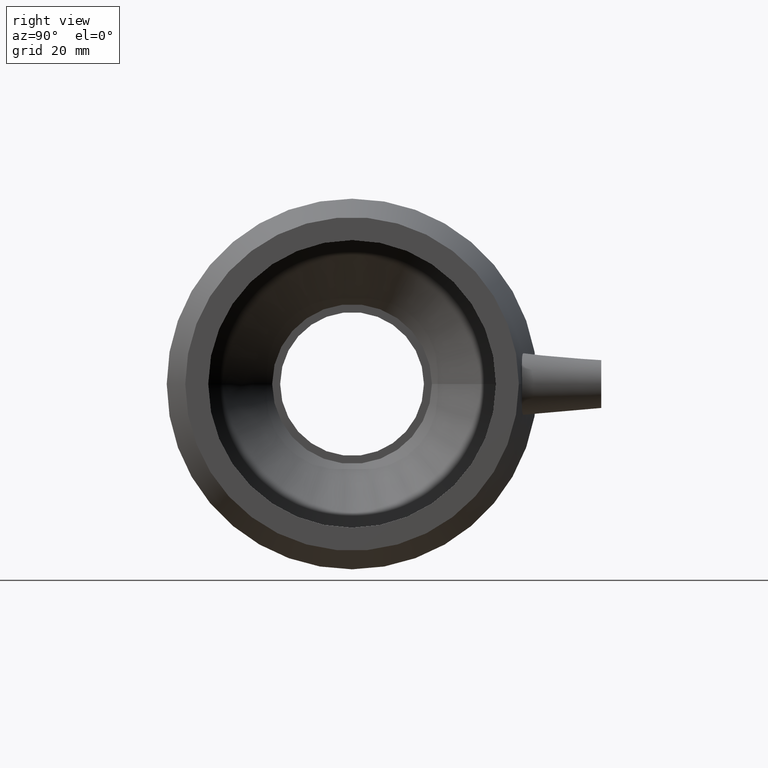
[diagram: clean part render]
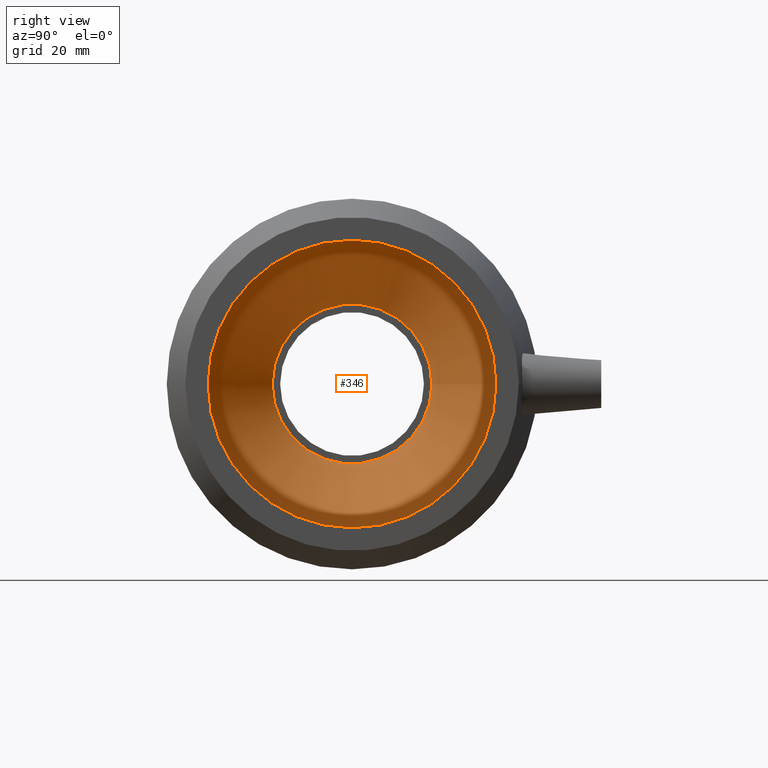
[diagram: same view with one face highlighted and labeled with its STEP entity id]
A machine part, right view. The second image highlights one B-rep face of the part: STEP entity #346.
In plain terms, the highlighted conical surface has half-angle 44.223 deg.
Its self-contained STEP definition (entity closure, byte-faithful):
#22=CONICAL_SURFACE('',#399,35.,44.2229162392636);
#45=FACE_BOUND('',#140,.T.);
#88=FACE_OUTER_BOUND('',#139,.T.);
#139=EDGE_LOOP('',(#292));
#140=EDGE_LOOP('',(#293));
#179=CIRCLE('',#398,45.);
#180=CIRCLE('',#400,25.);
#210=VERTEX_POINT('',#670);
#211=VERTEX_POINT('',#673);
#241=EDGE_CURVE('',#210,#210,#179,.T.);
#242=EDGE_CURVE('',#211,#211,#180,.T.);
#292=ORIENTED_EDGE('',*,*,#242,.F.);
#293=ORIENTED_EDGE('',*,*,#241,.T.);
#346=ADVANCED_FACE('',(#88,#45),#22,.F.);
#398=AXIS2_PLACEMENT_3D('',#671,#500,#501);
#399=AXIS2_PLACEMENT_3D('',#672,#502,#503);
#400=AXIS2_PLACEMENT_3D('',#674,#504,#505);
#500=DIRECTION('center_axis',(1.,1.83697019872103E-16,0.));
#501=DIRECTION('ref_axis',(0.,0.,-1.));
#502=DIRECTION('center_axis',(1.,1.83697019872103E-16,0.));
#503=DIRECTION('ref_axis',(-2.04658941435775E-16,1.,0.));
#504=DIRECTION('center_axis',(1.,1.83697019872103E-16,0.));
#505=DIRECTION('ref_axis',(0.,0.,-1.));
#670=CARTESIAN_POINT('',(0.49999999999998,45.,0.));
#671=CARTESIAN_POINT('Origin',(0.499999999999989,1.32261854307914E-14,0.));
#672=CARTESIAN_POINT('Origin',(-9.775,1.13386985516056E-14,0.));
#673=CARTESIAN_POINT('',(-20.05,25.,0.));
#674=CARTESIAN_POINT('Origin',(-20.05,9.4512116724197E-15,0.));